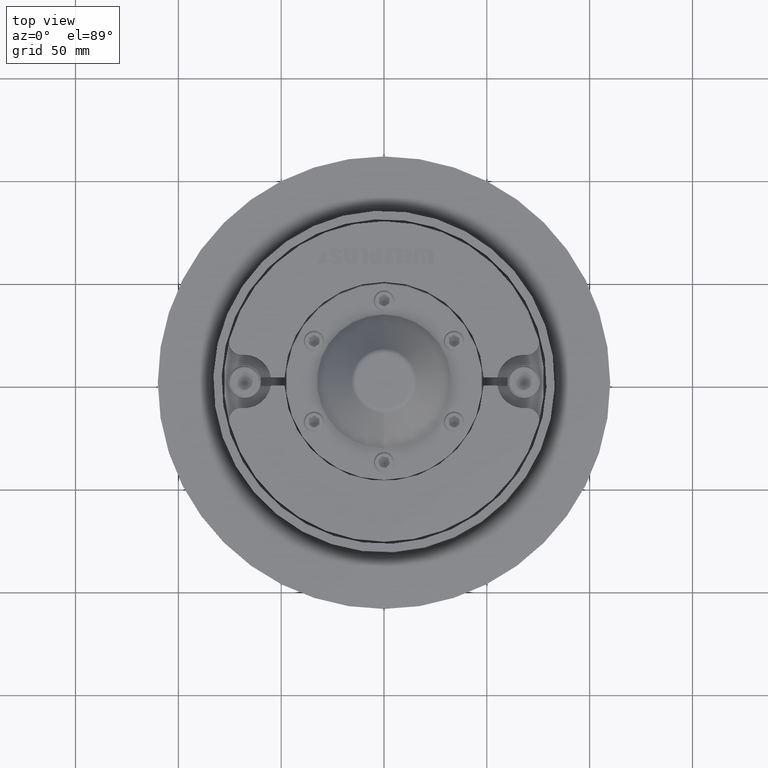
[diagram: clean part render]
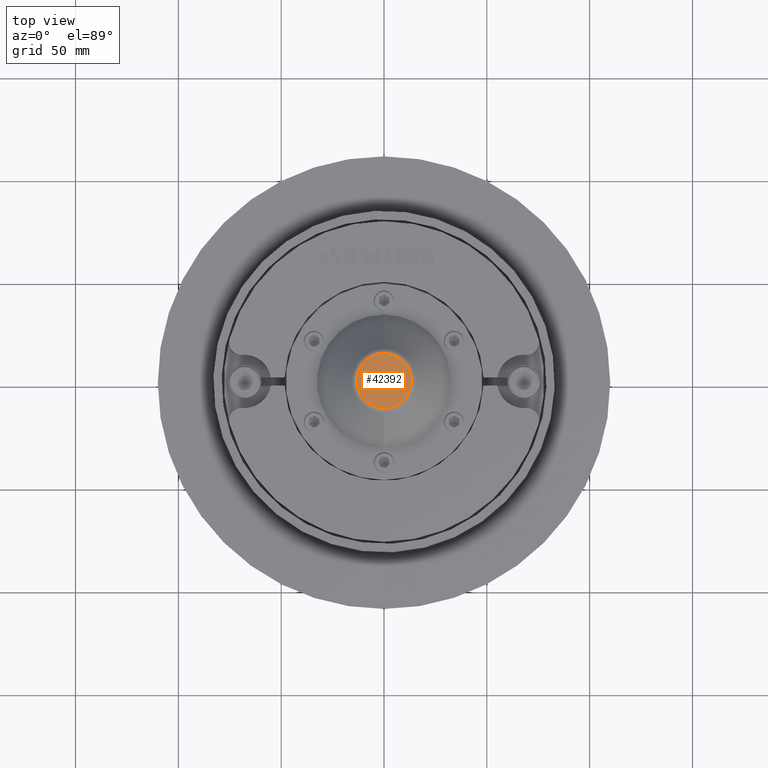
[diagram: same view with one face highlighted and labeled with its STEP entity id]
A machine part, top view. The second image highlights one B-rep face of the part: STEP entity #42392.
In plain terms, the highlighted planar face has unit normal (0, 0, 1).
Its self-contained STEP definition (entity closure, byte-faithful):
#6338 = PLANE ( 'NONE',  #54292 ) ;
#7874 = CARTESIAN_POINT ( 'NONE',  ( -2.277714243940906556E-06, 7.979400000001062310, 0.0000000000000000000 ) ) ;
#10938 = DIRECTION ( 'NONE',  ( 2.052230808033235889E-17, 1.000000000000000000, 0.0000000000000000000 ) ) ;
#11749 = AXIS2_PLACEMENT_3D ( 'NONE', #7874, #39697, #12497 ) ;
#12497 = DIRECTION ( 'NONE',  ( 1.000000000000000000, 0.0000000000000000000, 0.0000000000000000000 ) ) ;
#13808 = EDGE_CURVE ( 'NONE', #26471, #21688, #49718, .T. ) ;
#16376 = EDGE_LOOP ( 'NONE', ( #51256, #53899 ) ) ;
#17282 = CIRCLE ( 'NONE', #20628, 13.41275931288071455 ) ;
#20628 = AXIS2_PLACEMENT_3D ( 'NONE', #48048, #20852, #52643 ) ;
#20852 = DIRECTION ( 'NONE',  ( -2.052230808033235889E-17, -1.000000000000000000, -0.0000000000000000000 ) ) ;
#21688 = VERTEX_POINT ( 'NONE', #42885 ) ;
#24095 = CARTESIAN_POINT ( 'NONE',  ( -2.277714243940906556E-06, 7.979400000001062310, 0.0000000000000000000 ) ) ;
#26471 = VERTEX_POINT ( 'NONE', #44220 ) ;
#37207 = EDGE_CURVE ( 'NONE', #21688, #26471, #17282, .T. ) ;
#39145 = FACE_OUTER_BOUND ( 'NONE', #16376, .T. ) ;
#39697 = DIRECTION ( 'NONE',  ( -2.052230808033235889E-17, -1.000000000000000000, -0.0000000000000000000 ) ) ;
#42392 = ADVANCED_FACE ( 'NONE', ( #39145 ), #6338, .T. ) ;
#42751 = DIRECTION ( 'NONE',  ( -1.000000000000000000, 2.052230808033235889E-17, 0.0000000000000000000 ) ) ;
#42885 = CARTESIAN_POINT ( 'NONE',  ( -13.41276159059495932, 7.979400000001062310, 1.772482684460646994E-15 ) ) ;
#44220 = CARTESIAN_POINT ( 'NONE',  ( 13.41275703516646978, 7.979400000001062310, 0.0000000000000000000 ) ) ;
#48048 = CARTESIAN_POINT ( 'NONE',  ( -2.277714243940906556E-06, 7.979400000001062310, 0.0000000000000000000 ) ) ;
#49718 = CIRCLE ( 'NONE', #11749, 13.41275931288071455 ) ;
#51256 = ORIENTED_EDGE ( 'NONE', *, *, #13808, .F. ) ;
#52643 = DIRECTION ( 'NONE',  ( 1.000000000000000000, 0.0000000000000000000, 0.0000000000000000000 ) ) ;
#53899 = ORIENTED_EDGE ( 'NONE', *, *, #37207, .F. ) ;
#54292 = AXIS2_PLACEMENT_3D ( 'NONE', #24095, #10938, #42751 ) ;